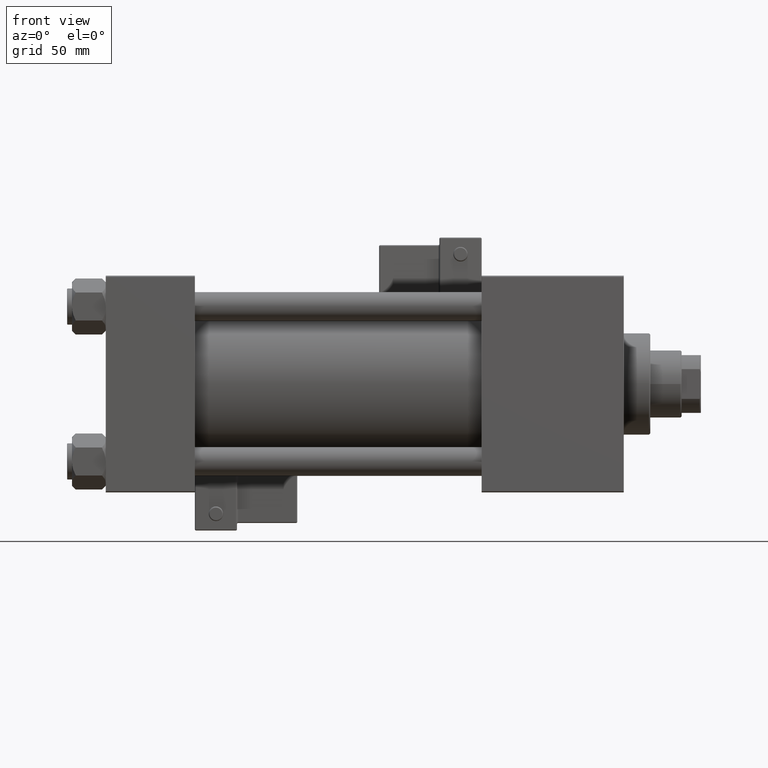
[diagram: clean part render]
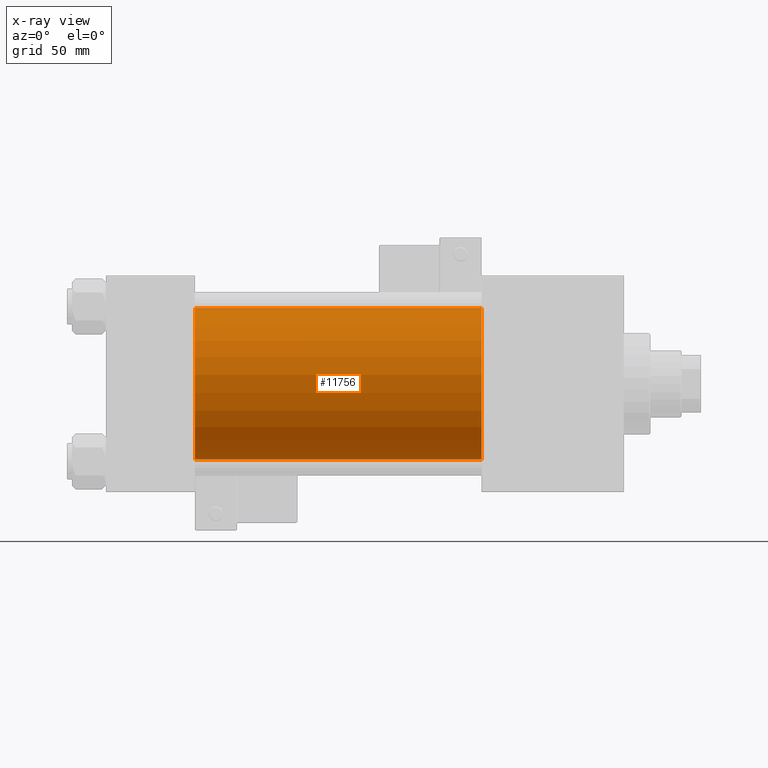
[diagram: x-ray — body ghosted, one internal face saturated and labeled with its STEP entity id]
A machine part, front view, then the same camera in x-ray: the body is ghosted and one INTERNAL B-rep face — a face not visible from any outside direction — is saturated and labeled: STEP entity #11756.
In plain terms, the highlighted cylindrical surface (partial cylindrical patch) has radius 31.5 mm, axis along (-1, -0, -0).
Its self-contained STEP definition (entity closure, byte-faithful):
#215 = CARTESIAN_POINT ( 'NONE',  ( 156.0000000000000000, -2.602085213965210642E-15, 0.000000000000000000 ) ) ;
#605 = ORIENTED_EDGE ( 'NONE', *, *, #17944, .F. ) ;
#1076 = AXIS2_PLACEMENT_3D ( 'NONE', #34991, #1407, #5203 ) ;
#1407 = DIRECTION ( 'NONE',  ( 1.000000000000000000, 0.000000000000000000, 0.000000000000000000 ) ) ;
#2821 = ORIENTED_EDGE ( 'NONE', *, *, #12890, .F. ) ;
#5203 = DIRECTION ( 'NONE',  ( 0.000000000000000000, 0.000000000000000000, -1.000000000000000000 ) ) ;
#6722 = FACE_OUTER_BOUND ( 'NONE', #41310, .T. ) ;
#7110 = VERTEX_POINT ( 'NONE', #45488 ) ;
#7511 = CARTESIAN_POINT ( 'NONE',  ( 156.0000000000000000, 1.255552203348951850E-15, -31.50000000000000000 ) ) ;
#8741 = AXIS2_PLACEMENT_3D ( 'NONE', #18115, #14324, #22446 ) ;
#9992 = CYLINDRICAL_SURFACE ( 'NONE', #8741, 31.50000000000000000 ) ;
#11756 = ADVANCED_FACE ( 'NONE', ( #6722 ), #9992, .F. ) ;
#11786 = CARTESIAN_POINT ( 'NONE',  ( 37.00000000000000000, 1.255552203348951850E-15, -31.50000000000000000 ) ) ;
#12890 = EDGE_CURVE ( 'NONE', #7110, #16146, #51259, .T. ) ;
#13173 = AXIS2_PLACEMENT_3D ( 'NONE', #215, #37584, #49256 ) ;
#14324 = DIRECTION ( 'NONE',  ( -1.000000000000000000, -0.000000000000000000, -0.000000000000000000 ) ) ;
#16146 = VERTEX_POINT ( 'NONE', #28889 ) ;
#17506 = CIRCLE ( 'NONE', #1076, 31.50000000000000000 ) ;
#17944 = EDGE_CURVE ( 'NONE', #16146, #30772, #17506, .T. ) ;
#18115 = CARTESIAN_POINT ( 'NONE',  ( 156.0000000000000000, -2.602085213965210642E-15, 0.000000000000000000 ) ) ;
#20583 = EDGE_CURVE ( 'NONE', #36188, #30772, #28336, .T. ) ;
#22446 = DIRECTION ( 'NONE',  ( 0.000000000000000000, 0.000000000000000000, 1.000000000000000000 ) ) ;
#22522 = DIRECTION ( 'NONE',  ( -1.000000000000000000, -0.000000000000000000, -0.000000000000000000 ) ) ;
#22702 = VECTOR ( 'NONE', #22522, 1000.000000000000000 ) ;
#28336 = LINE ( 'NONE', #7511, #30605 ) ;
#28889 = CARTESIAN_POINT ( 'NONE',  ( 37.00000000000000000, -2.602085213965210642E-15, 31.50000000000000000 ) ) ;
#30294 = CARTESIAN_POINT ( 'NONE',  ( 156.0000000000000000, 1.255552203348951850E-15, -31.50000000000000000 ) ) ;
#30605 = VECTOR ( 'NONE', #47897, 1000.000000000000000 ) ;
#30772 = VERTEX_POINT ( 'NONE', #11786 ) ;
#34991 = CARTESIAN_POINT ( 'NONE',  ( 37.00000000000000000, -2.602085213965210642E-15, 0.000000000000000000 ) ) ;
#35891 = ORIENTED_EDGE ( 'NONE', *, *, #50437, .T. ) ;
#36188 = VERTEX_POINT ( 'NONE', #30294 ) ;
#36512 = CIRCLE ( 'NONE', #13173, 31.50000000000000000 ) ;
#37584 = DIRECTION ( 'NONE',  ( 1.000000000000000000, 0.000000000000000000, 0.000000000000000000 ) ) ;
#37690 = ORIENTED_EDGE ( 'NONE', *, *, #20583, .T. ) ;
#41310 = EDGE_LOOP ( 'NONE', ( #35891, #37690, #605, #2821 ) ) ;
#45488 = CARTESIAN_POINT ( 'NONE',  ( 156.0000000000000000, -2.602085213965210642E-15, 31.50000000000000000 ) ) ;
#47181 = CARTESIAN_POINT ( 'NONE',  ( 156.0000000000000000, -2.602085213965210642E-15, 31.50000000000000000 ) ) ;
#47897 = DIRECTION ( 'NONE',  ( -1.000000000000000000, -0.000000000000000000, -0.000000000000000000 ) ) ;
#49256 = DIRECTION ( 'NONE',  ( 0.000000000000000000, 0.000000000000000000, -1.000000000000000000 ) ) ;
#50437 = EDGE_CURVE ( 'NONE', #7110, #36188, #36512, .T. ) ;
#51259 = LINE ( 'NONE', #47181, #22702 ) ;